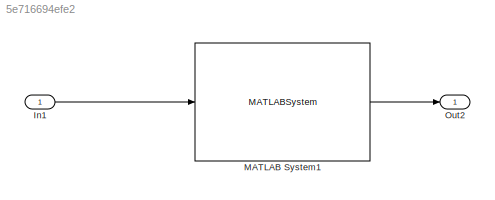
MODEL slx_5e716694efe2
KIND model
CONFIG AbsTol = auto
CONFIG EnableMultiTasking = on
CONFIG FixedStep = auto
CONFIG MaxStep = auto
CONFIG MinStep = auto
CONFIG RelTol = 1e-3
CONFIG SampleTimeConstraint = Unconstrained
CONFIG Solver = FixedStepAuto
CONFIG SolverName = FixedStepAuto
CONFIG StartTime = 0.0
CONFIG StopTime = 10.0
BLOCK [Inport] In1
  IconDisplay = Port number
BLOCK [MATLABSystem] MATLAB System1
  MaskDisplay = disp('SimulinkAddOneExt');\nport_label('input',1,'u');\nport_label('output',1,'y');
  MaskType = SimulinkAddOneExt
  Ports = [1, 1]
  SimulateUsing = Code generation
  System = SimulinkAddOneExt
  initCondition = 10
BLOCK [Outport] Out2
  IconDisplay = Port number
LINE In1:1 -> MATLAB System1:1
LINE MATLAB System1:1 -> Out2:1
